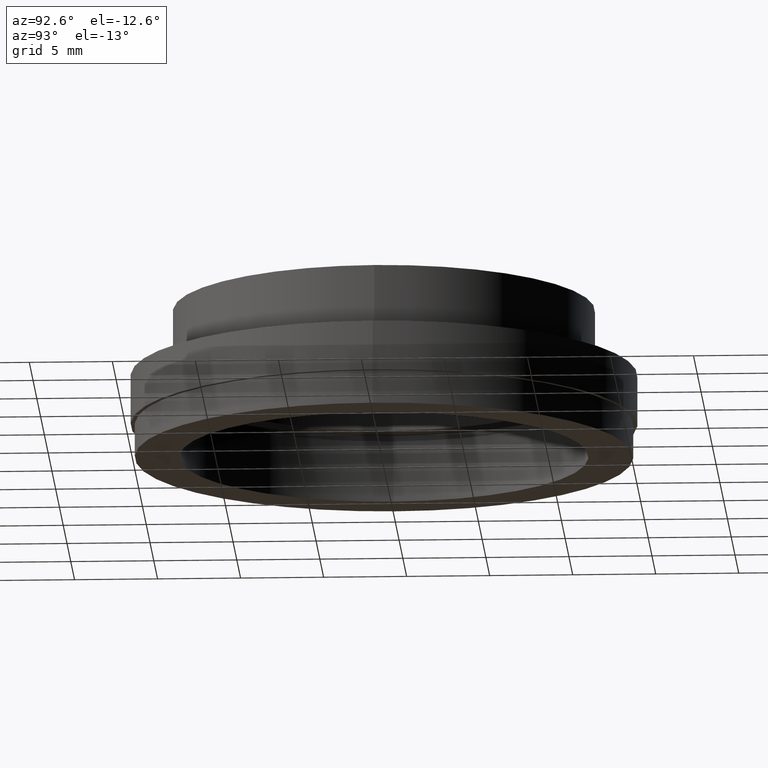
[diagram: clean part render]
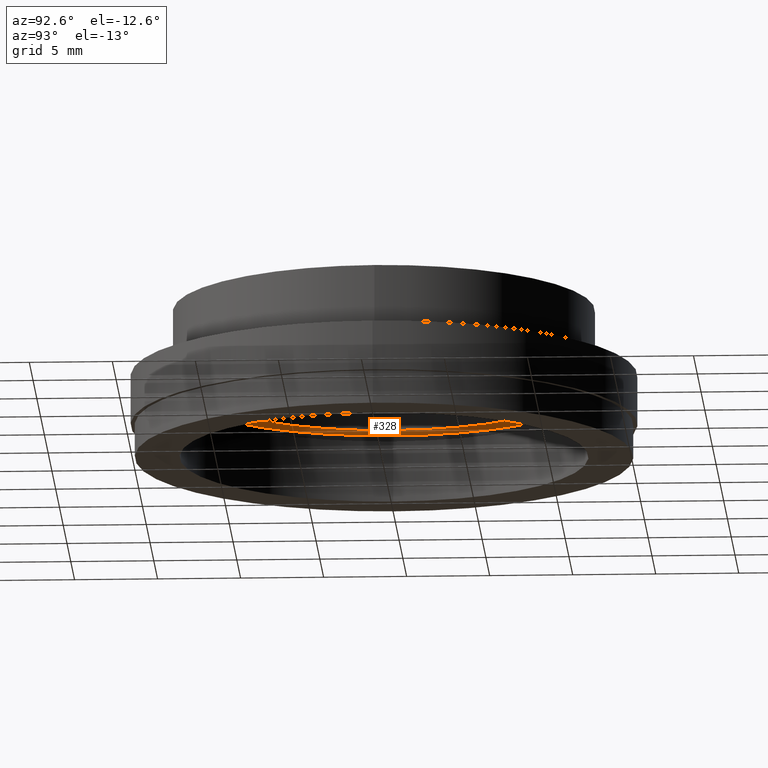
[diagram: same view with one face highlighted and labeled with its STEP entity id]
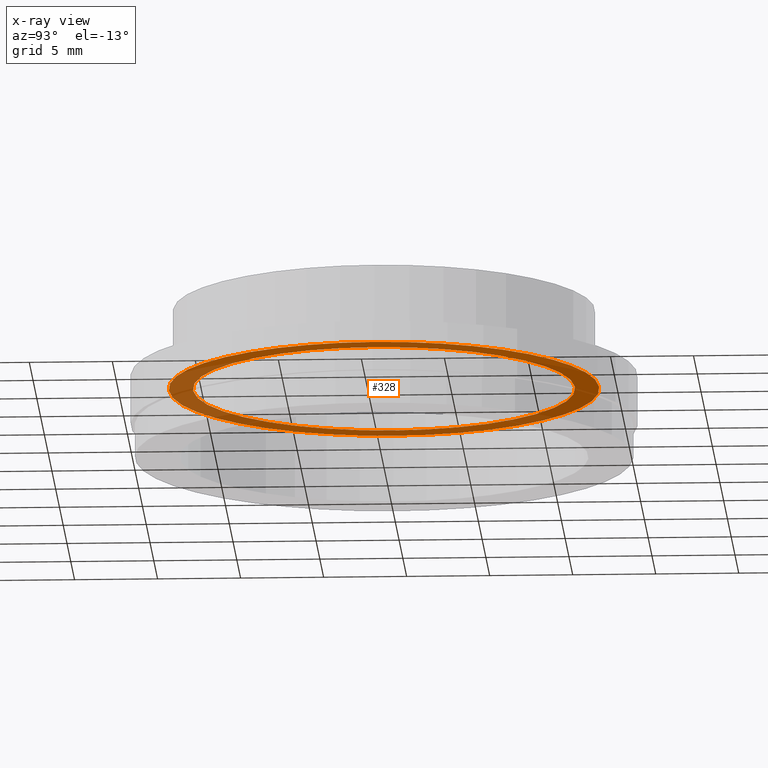
[diagram: x-ray of the same camera — body ghosted, the highlighted face saturated]
A machine part, auxiliary view. The second image highlights one B-rep face of the part: STEP entity #328.
The next image is the same camera in x-ray: the body ghosted, the highlighted face saturated — about 44% of this face is hidden behind the body in this view.
In plain terms, the highlighted planar face has unit normal (0, -0, 1).
Its self-contained STEP definition (entity closure, byte-faithful):
#51 = DIRECTION ( 'NONE',  ( 1.000000000000000000, 0.0000000000000000000, 0.0000000000000000000 ) ) ;
#63 = ORIENTED_EDGE ( 'NONE', *, *, #560, .T. ) ;
#97 = DIRECTION ( 'NONE',  ( -0.0000000000000000000, -0.0000000000000000000, 1.000000000000000000 ) ) ;
#114 = CARTESIAN_POINT ( 'NONE',  ( 0.0000000000000000000, 12.95500000000000000, -4.799999999999998900 ) ) ;
#117 = PLANE ( 'NONE',  #599 ) ;
#122 = FACE_OUTER_BOUND ( 'NONE', #570, .T. ) ;
#166 = CIRCLE ( 'NONE', #571, 11.50000000000000000 ) ;
#203 = DIRECTION ( 'NONE',  ( 1.000000000000000000, 0.0000000000000000000, 0.0000000000000000000 ) ) ;
#206 = CARTESIAN_POINT ( 'NONE',  ( -11.50000000000000000, 1.408343819019456200E-015, -4.799999999999998900 ) ) ;
#207 = DIRECTION ( 'NONE',  ( -0.0000000000000000000, -0.0000000000000000000, 1.000000000000000000 ) ) ;
#209 = CARTESIAN_POINT ( 'NONE',  ( 12.95500000000000000, 0.0000000000000000000, -4.799999999999998900 ) ) ;
#265 = AXIS2_PLACEMENT_3D ( 'NONE', #269, #661, #203 ) ;
#269 = CARTESIAN_POINT ( 'NONE',  ( 0.0000000000000000000, 0.0000000000000000000, -4.799999999999998900 ) ) ;
#294 = FACE_BOUND ( 'NONE', #705, .T. ) ;
#310 = VERTEX_POINT ( 'NONE', #386 ) ;
#325 = CIRCLE ( 'NONE', #825, 12.95500000000000000 ) ;
#328 = ADVANCED_FACE ( 'NONE', ( #122, #294 ), #117, .F. ) ;
#371 = EDGE_CURVE ( 'NONE', #440, #721, #325, .T. ) ;
#386 = CARTESIAN_POINT ( 'NONE',  ( 11.50000000000000000, 0.0000000000000000000, -4.799999999999998900 ) ) ;
#427 = DIRECTION ( 'NONE',  ( -0.0000000000000000000, -0.0000000000000000000, 1.000000000000000000 ) ) ;
#428 = ORIENTED_EDGE ( 'NONE', *, *, #371, .F. ) ;
#440 = VERTEX_POINT ( 'NONE', #609 ) ;
#443 = EDGE_CURVE ( 'NONE', #783, #310, #623, .T. ) ;
#492 = DIRECTION ( 'NONE',  ( 1.000000000000000000, 0.0000000000000000000, 0.0000000000000000000 ) ) ;
#511 = DIRECTION ( 'NONE',  ( 0.0000000000000000000, -0.0000000000000000000, 1.000000000000000000 ) ) ;
#546 = DIRECTION ( 'NONE',  ( 1.000000000000000000, 0.0000000000000000000, 0.0000000000000000000 ) ) ;
#560 = EDGE_CURVE ( 'NONE', #310, #783, #166, .T. ) ;
#570 = EDGE_LOOP ( 'NONE', ( #786, #428 ) ) ;
#571 = AXIS2_PLACEMENT_3D ( 'NONE', #768, #427, #546 ) ;
#572 = CARTESIAN_POINT ( 'NONE',  ( 0.0000000000000000000, 0.0000000000000000000, -4.799999999999998900 ) ) ;
#599 = AXIS2_PLACEMENT_3D ( 'NONE', #114, #511, #51 ) ;
#606 = DIRECTION ( 'NONE',  ( 1.000000000000000000, 0.0000000000000000000, 0.0000000000000000000 ) ) ;
#609 = CARTESIAN_POINT ( 'NONE',  ( -12.95500000000000000, 1.586529928295396000E-015, -4.799999999999998900 ) ) ;
#623 = CIRCLE ( 'NONE', #711, 11.50000000000000000 ) ;
#661 = DIRECTION ( 'NONE',  ( -0.0000000000000000000, -0.0000000000000000000, 1.000000000000000000 ) ) ;
#666 = CARTESIAN_POINT ( 'NONE',  ( 0.0000000000000000000, 0.0000000000000000000, -4.799999999999998900 ) ) ;
#671 = ORIENTED_EDGE ( 'NONE', *, *, #443, .T. ) ;
#705 = EDGE_LOOP ( 'NONE', ( #63, #671 ) ) ;
#711 = AXIS2_PLACEMENT_3D ( 'NONE', #666, #207, #606 ) ;
#721 = VERTEX_POINT ( 'NONE', #209 ) ;
#768 = CARTESIAN_POINT ( 'NONE',  ( 0.0000000000000000000, 0.0000000000000000000, -4.799999999999998900 ) ) ;
#783 = VERTEX_POINT ( 'NONE', #206 ) ;
#786 = ORIENTED_EDGE ( 'NONE', *, *, #794, .F. ) ;
#794 = EDGE_CURVE ( 'NONE', #721, #440, #807, .T. ) ;
#807 = CIRCLE ( 'NONE', #265, 12.95500000000000000 ) ;
#825 = AXIS2_PLACEMENT_3D ( 'NONE', #572, #97, #492 ) ;